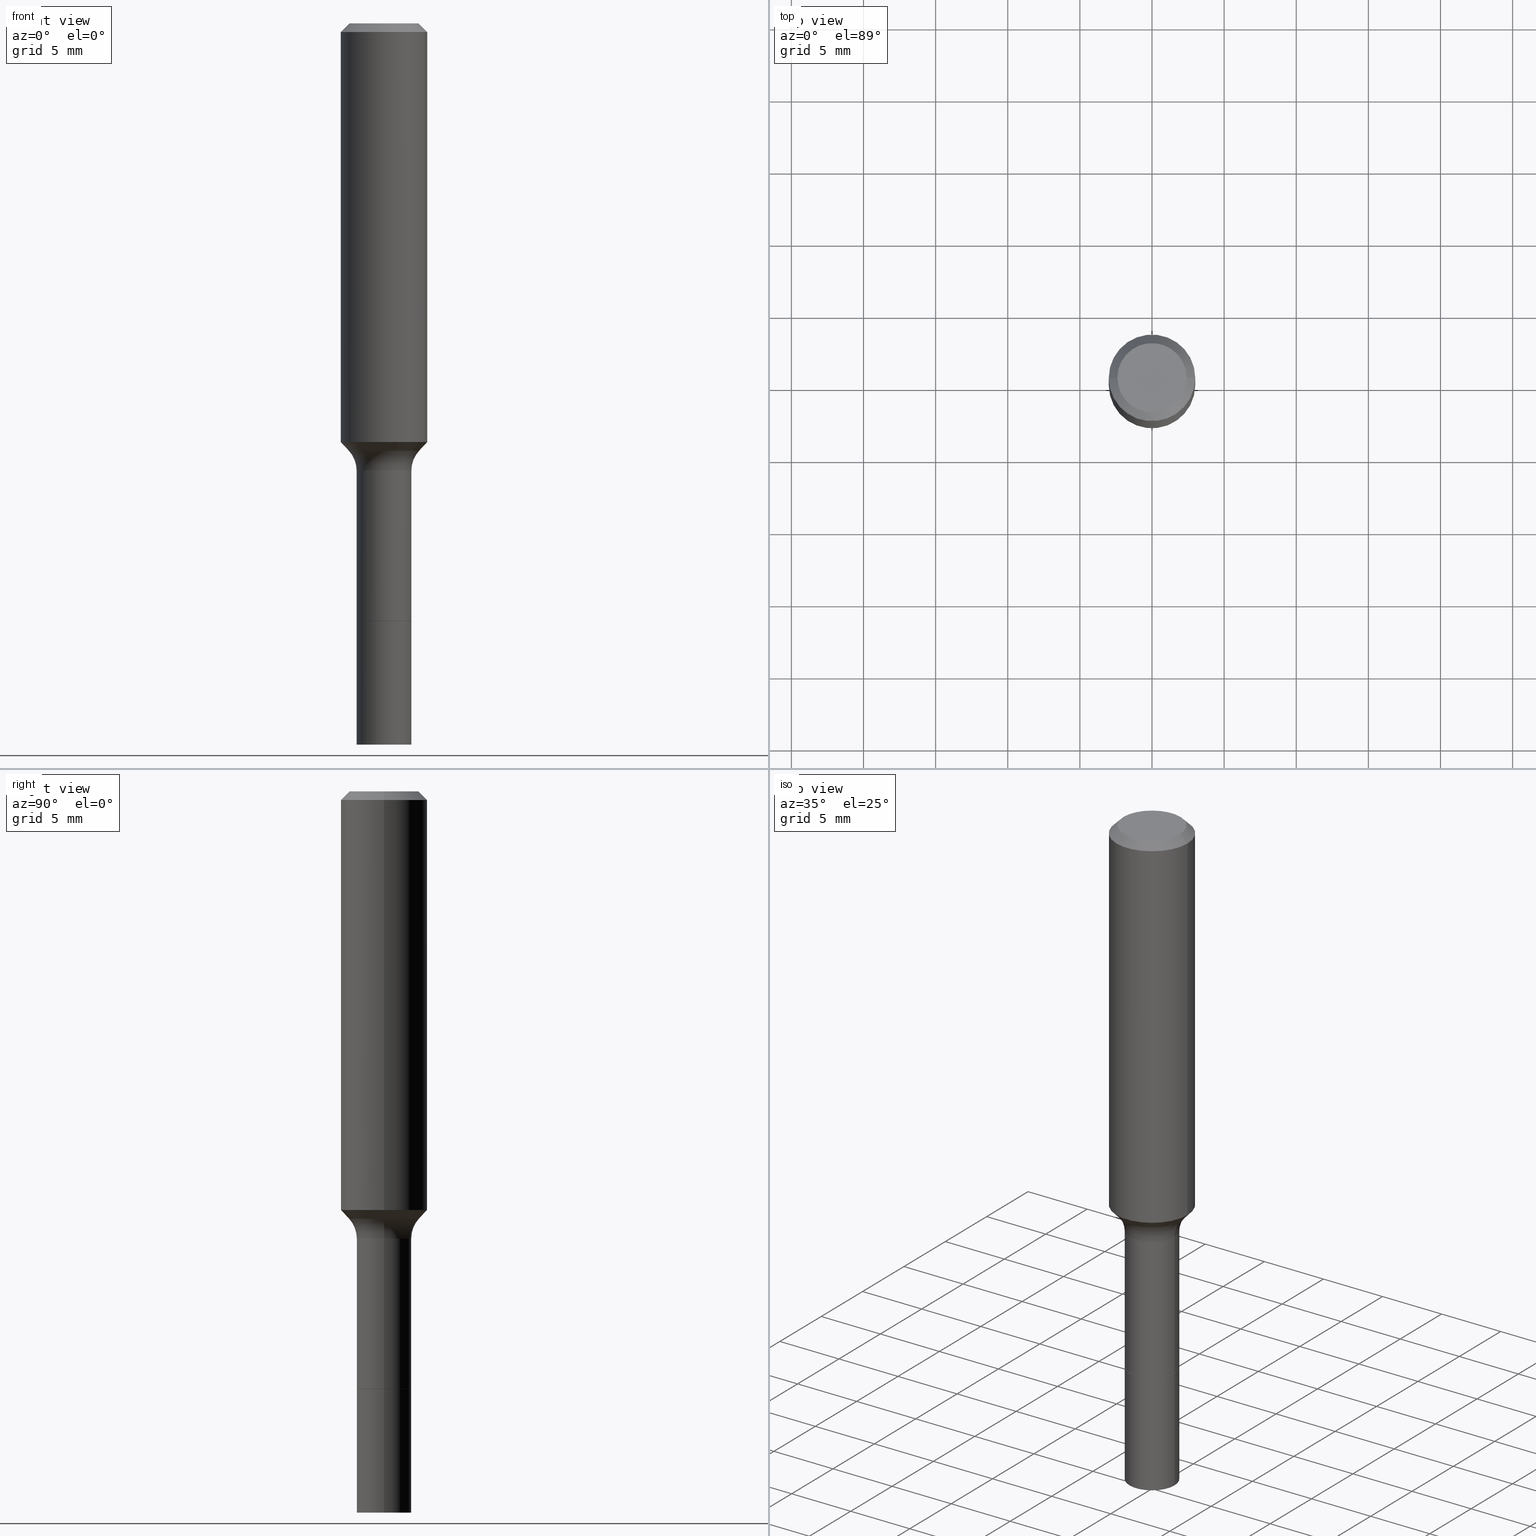
[diagram: canonical four-view strip — front | top / right | iso, engineering-drawing reading convention]
A machine part, canonical four-view strip (front | top / right | iso — engineering-drawing reading convention). The complete STEP part file that produces these views, byte-faithful:
ISO-10303-21;
HEADER;
FILE_DESCRIPTION (( 'STEP AP203' ),
    '1' );
FILE_NAME ('58493.STEP',
    '2025-04-01T15:23:44',
    ( '' ),
    ( '' ),
    'SwSTEP 2.0',
    'SolidWorks 2024',
    '' );
FILE_SCHEMA (( 'CONFIG_CONTROL_DESIGN' ));
ENDSEC;

DATA;
#1 = DIRECTION ( 'NONE',  ( 1.000000000000000000, -6.982962677686264344E-15, 0.000000000000000000 ) ) ;
#2 = ORIENTED_EDGE ( 'NONE', *, *, #299, .F. ) ;
#3 = CIRCLE ( 'NONE', #172, 0.07474999999999999700 ) ;
#4 = AXIS2_PLACEMENT_3D ( 'NONE', #313, #390, #204 ) ;
#5 = ADVANCED_FACE ( 'NONE', ( #259 ), #118, .T. ) ;
#6 = DIRECTION ( 'NONE',  ( -2.445468806185136597E-29, 3.491481338843145583E-15, 1.000000000000000000 ) ) ;
#7 = EDGE_LOOP ( 'NONE', ( #273, #212, #394, #423 ) ) ;
#8 = CARTESIAN_POINT ( 'NONE',  ( -0.07474999999999996925, 5.311306949806746704E-16, -3.676903979965540069E-30 ) ) ;
#9 = SHAPE_DEFINITION_REPRESENTATION ( #242, #48 ) ;
#10 = ORIENTED_EDGE ( 'NONE', *, *, #16, .T. ) ;
#11 = DIRECTION ( 'NONE',  ( 1.000000000000000000, -6.982962677686263555E-15, 0.000000000000000000 ) ) ;
#12 = EDGE_LOOP ( 'NONE', ( #112, #114, #436, #51 ) ) ;
#13 = EDGE_CURVE ( 'NONE', #159, #407, #219, .T. ) ;
#14 = AXIS2_PLACEMENT_3D ( 'NONE', #377, #222, #297 ) ;
#15 = CARTESIAN_POINT ( 'NONE',  ( 0.000000000000000000, 0.000000000000000000, 0.000000000000000000 ) ) ;
#16 = EDGE_CURVE ( 'NONE', #35, #407, #396, .T. ) ;
#17 = DIRECTION ( 'NONE',  ( 1.000000000000000000, -6.982962677686265922E-15, 0.000000000000000000 ) ) ;
#18 = EDGE_CURVE ( 'NONE', #201, #223, #329, .T. ) ;
#19 = DIRECTION ( 'NONE',  ( -2.445468806185136597E-29, 3.491481338843145583E-15, 1.000000000000000000 ) ) ;
#20 = AXIS2_PLACEMENT_3D ( 'NONE', #429, #151, #378 ) ;
#21 = VECTOR ( 'NONE', #441, 39.37007874015748143 ) ;
#22 = CARTESIAN_POINT ( 'NONE',  ( -0.09624170387046646069, -3.387019774652324153E-15, -1.165940131194999951 ) ) ;
#23 = DIRECTION ( 'NONE',  ( -2.445468806185136597E-29, 3.491481338843145583E-15, 1.000000000000000000 ) ) ;
#24 = DIRECTION ( 'NONE',  ( -2.445468806185136597E-29, 3.491481338843145583E-15, 1.000000000000000000 ) ) ;
#25 = DIRECTION ( 'NONE',  ( -2.445468806185136877E-29, 3.491481338843145188E-15, 1.000000000000000000 ) ) ;
#26 = AXIS2_PLACEMENT_3D ( 'NONE', #92, #19, #252 ) ;
#27 = CARTESIAN_POINT ( 'NONE',  ( 2.851270220716778020E-29, -4.070858210275670967E-15, -1.165940131194999951 ) ) ;
#28 = DIRECTION ( 'NONE',  ( -2.445468806185136597E-29, 3.491481338843145583E-15, 1.000000000000000000 ) ) ;
#29 = VERTEX_POINT ( 'NONE', #372 ) ;
#30 = LINE ( 'NONE', #111, #198 ) ;
#31 = DIRECTION ( 'NONE',  ( -1.000000000000000000, 7.105427357600997914E-15, 0.000000000000000000 ) ) ;
#32 = ADVANCED_FACE ( 'NONE', ( #135 ), #457, .F. ) ;
#33 = DIRECTION ( 'NONE',  ( 1.000000000000000000, -6.982962677686271444E-15, 0.000000000000000000 ) ) ;
#34 = DIRECTION ( 'NONE',  ( -2.445468806185136877E-29, 3.491481338843145188E-15, 1.000000000000000000 ) ) ;
#35 = VERTEX_POINT ( 'NONE', #288 ) ;
#36 = DIRECTION ( 'NONE',  ( -2.445468806185136597E-29, 3.491481338843145583E-15, 1.000000000000000000 ) ) ;
#37 = APPROVAL_ROLE ( '' ) ;
#38 = CIRCLE ( 'NONE', #417, 0.09447999999999998066 ) ;
#39 = CARTESIAN_POINT ( 'NONE',  ( 0.07424999999999999656, -6.211345301801953456E-15, -1.630500000000000060 ) ) ;
#40 = VERTEX_POINT ( 'NONE', #453 ) ;
#41 = DIRECTION ( 'NONE',  ( -2.445468806185136597E-29, 3.491481338843145583E-15, 1.000000000000000000 ) ) ;
#42 = ORIENTED_EDGE ( 'NONE', *, *, #490, .F. ) ;
#43 = EDGE_CURVE ( 'NONE', #201, #392, #518, .T. ) ;
#44 = AXIS2_PLACEMENT_3D ( 'NONE', #253, #410, #17 ) ;
#45 = DIRECTION ( 'NONE',  ( 1.000000000000000000, -6.982962677686263555E-15, 0.000000000000000000 ) ) ;
#46 = VERTEX_POINT ( 'NONE', #55 ) ;
#47 = APPROVAL_PERSON_ORGANIZATION ( #193, #413, #37 ) ;
#48 = ADVANCED_BREP_SHAPE_REPRESENTATION ( '58493', ( #367, #189, #14 ), #179 ) ;
#49 = EDGE_LOOP ( 'NONE', ( #65, #324 ) ) ;
#50 = CARTESIAN_POINT ( 'NONE',  ( 2.793948058174047032E-29, -3.989017354111862493E-15, -1.142499978371234404 ) ) ;
#51 = ORIENTED_EDGE ( 'NONE', *, *, #128, .F. ) ;
#52 = DIRECTION ( 'NONE',  ( 2.438088387897960049E-29, -3.491481338843145188E-15, -1.000000000000000000 ) ) ;
#53 = VERTEX_POINT ( 'NONE', #256 ) ;
#54 = ADVANCED_FACE ( 'NONE', ( #459 ), #209, .T. ) ;
#55 = CARTESIAN_POINT ( 'NONE',  ( -0.07474999999999999700, -4.445103083205517975E-15, -1.630000000000000115 ) ) ;
#56 = CC_DESIGN_PERSON_AND_ORGANIZATION_ASSIGNMENT ( #247, #402, ( #254 ) ) ;
#57 = EDGE_LOOP ( 'NONE', ( #139, #251 ) ) ;
#58 = LOCAL_TIME ( 11, 23, 44.00000000000000000, #75 ) ;
#59 = DIRECTION ( 'NONE',  ( 2.445468806185136597E-29, -3.491481338843145583E-15, -1.000000000000000000 ) ) ;
#60 = CARTESIAN_POINT ( 'NONE',  ( 2.984694677948959472E-29, -4.261352974058059028E-15, -1.220499999999999918 ) ) ;
#61 = PERSON_AND_ORGANIZATION_ROLE ( 'design_owner' ) ;
#62 = FACE_OUTER_BOUND ( 'NONE', #7, .T. ) ;
#63 = EDGE_CURVE ( 'NONE', #392, #53, #385, .T. ) ;
#64 = CARTESIAN_POINT ( 'NONE',  ( -0.07474999999999999700, -5.161729628003073983E-15, -1.630500000000000060 ) ) ;
#65 = ORIENTED_EDGE ( 'NONE', *, *, #346, .T. ) ;
#66 = TOROIDAL_SURFACE ( 'NONE', #333, 0.1547499999999999709, 0.08000000000000007105 ) ;
#67 = CYLINDRICAL_SURFACE ( 'NONE', #388, 0.07474999999999999700 ) ;
#68 = COORDINATED_UNIVERSAL_TIME_OFFSET ( 5, 0, .BEHIND. ) ;
#69 = ADVANCED_FACE ( 'NONE', ( #214 ), #138, .F. ) ;
#70 = DIRECTION ( 'NONE',  ( 1.000000000000000000, -6.982962677686271444E-15, 0.000000000000000000 ) ) ;
#71 = APPLICATION_PROTOCOL_DEFINITION ( 'international standard', 'config_control_design', 1994, #218 ) ;
#72 = LINE ( 'NONE', #64, #174 ) ;
#73 = AXIS2_PLACEMENT_3D ( 'NONE', #140, #23, #216 ) ;
#74 = CARTESIAN_POINT ( 'NONE',  ( 0.07474999999999999700, -7.394957475669780996E-15, -1.968500000000000139 ) ) ;
#75 = COORDINATED_UNIVERSAL_TIME_OFFSET ( 5, 0, .BEHIND. ) ;
#76 = VERTEX_POINT ( 'NONE', #497 ) ;
#77 = PRODUCT_DEFINITION_FORMATION_WITH_SPECIFIED_SOURCE ( 'ANY', '', #477, .NOT_KNOWN. ) ;
#78 = FACE_OUTER_BOUND ( 'NONE', #163, .T. ) ;
#79 = EDGE_CURVE ( 'NONE', #223, #407, #335, .T. ) ;
#80 = DATE_AND_TIME ( #276, #266 ) ;
#81 = VERTEX_POINT ( 'NONE', #185 ) ;
#82 = CARTESIAN_POINT ( 'NONE',  ( 0.09624170387046646069, -4.742910436440072201E-15, -1.165940131194999951 ) ) ;
#83 = APPROVAL_STATUS ( 'not_yet_approved' ) ;
#84 = ORIENTED_EDGE ( 'NONE', *, *, #286, .T. ) ;
#85 = FACE_OUTER_BOUND ( 'NONE', #517, .T. ) ;
#86 = SECURITY_CLASSIFICATION_LEVEL ( 'unclassified' ) ;
#87 = ORIENTED_EDGE ( 'NONE', *, *, #316, .T. ) ;
#88 = AXIS2_PLACEMENT_3D ( 'NONE', #235, #515, #89 ) ;
#89 = DIRECTION ( 'NONE',  ( 1.000000000000000000, -6.982962677686271444E-15, 0.000000000000000000 ) ) ;
#90 = ORIENTED_EDGE ( 'NONE', *, *, #490, .T. ) ;
#91 = CARTESIAN_POINT ( 'NONE',  ( 3.986114154081773303E-29, -5.691114582314327248E-15, -1.630000000000000115 ) ) ;
#92 = CARTESIAN_POINT ( 'NONE',  ( 2.851270220716778020E-29, -4.070858210275670967E-15, -1.165940131194999951 ) ) ;
#93 = AXIS2_PLACEMENT_3D ( 'NONE', #300, #269, #509 ) ;
#94 = DIRECTION ( 'NONE',  ( 1.000000000000000000, -6.982962677686266711E-15, 4.876176775795935793E-29 ) ) ;
#95 = LOCAL_TIME ( 11, 23, 44.00000000000000000, #68 ) ;
#96 = ORIENTED_EDGE ( 'NONE', *, *, #391, .T. ) ;
#97 = DIRECTION ( 'NONE',  ( -0.7071067811865461294, 2.468850131082242072E-15, -0.7071067811865489050 ) ) ;
#98 = ORIENTED_EDGE ( 'NONE', *, *, #421, .F. ) ;
#99 = AXIS2_PLACEMENT_3D ( 'NONE', #177, #59, #458 ) ;
#100 = CIRCLE ( 'NONE', #400, 0.1181000000000001493 ) ;
#101 = CARTESIAN_POINT ( 'NONE',  ( -0.07424999999999999656, -5.162633114507762892E-15, -1.630500000000000060 ) ) ;
#102 = DIRECTION ( 'NONE',  ( -2.445468806185136597E-29, 3.491481338843145583E-15, 1.000000000000000000 ) ) ;
#103 = FACE_OUTER_BOUND ( 'NONE', #12, .T. ) ;
#104 = CALENDAR_DATE ( 2025, 1, 4 ) ;
#105 = DIRECTION ( 'NONE',  ( 0.7071067811866199593, -2.468850131083015945E-15, 0.7071067811864750752 ) ) ;
#106 = APPROVAL_DATE_TIME ( #147, #203 ) ;
#107 = CIRCLE ( 'NONE', #20, 0.09447999999999998066 ) ;
#108 = CARTESIAN_POINT ( 'NONE',  ( 0.07424999999999999656, -6.211345301801953456E-15, -1.630500000000000060 ) ) ;
#109 = CONICAL_SURFACE ( 'NONE', #409, 0.1180999999999999966, 0.7853981633974463916 ) ;
#110 = ORIENTED_EDGE ( 'NONE', *, *, #411, .F. ) ;
#111 = CARTESIAN_POINT ( 'NONE',  ( 0.1181000000000000660, -8.246878922347485584E-16, 5.758764772215003944E-30 ) ) ;
#112 = ORIENTED_EDGE ( 'NONE', *, *, #145, .T. ) ;
#113 = LINE ( 'NONE', #82, #501 ) ;
#114 = ORIENTED_EDGE ( 'NONE', *, *, #496, .T. ) ;
#115 = VECTOR ( 'NONE', #25, 39.37007874015748143 ) ;
#116 = ADVANCED_FACE ( 'NONE', ( #347 ), #267, .T. ) ;
#117 = DIRECTION ( 'NONE',  ( 1.000000000000000000, -6.982962677686271444E-15, 0.000000000000000000 ) ) ;
#118 = CONICAL_SURFACE ( 'NONE', #99, 0.1180999999999999966, 0.7853981633974463916 ) ;
#119 = COORDINATED_UNIVERSAL_TIME_OFFSET ( 5, 0, .BEHIND. ) ;
#120 = ORIENTED_EDGE ( 'NONE', *, *, #316, .F. ) ;
#121 = AXIS2_PLACEMENT_3D ( 'NONE', #165, #357, #1 ) ;
#122 = LINE ( 'NONE', #8, #21 ) ;
#123 = PRODUCT_RELATED_PRODUCT_CATEGORY ( 'detail', '', ( #477 ) ) ;
#124 = EDGE_LOOP ( 'NONE', ( #445, #173, #84, #315 ) ) ;
#125 = FACE_OUTER_BOUND ( 'NONE', #124, .T. ) ;
#126 = PERSON_AND_ORGANIZATION ( #258, #308 ) ;
#127 = ORIENTED_EDGE ( 'NONE', *, *, #215, .F. ) ;
#128 = EDGE_CURVE ( 'NONE', #361, #29, #419, .T. ) ;
#129 = AXIS2_PLACEMENT_3D ( 'NONE', #309, #468, #498 ) ;
#130 = DIRECTION ( 'NONE',  ( 1.000000000000000000, -6.982962677686265922E-15, 0.000000000000000000 ) ) ;
#131 = CALENDAR_DATE ( 2025, 1, 4 ) ;
#132 = ORIENTED_EDGE ( 'NONE', *, *, #43, .F. ) ;
#133 = AXIS2_PLACEMENT_3D ( 'NONE', #393, #475, #117 ) ;
#134 = PLANE ( 'NONE',  #150 ) ;
#135 = FACE_OUTER_BOUND ( 'NONE', #57, .T. ) ;
#136 = VERTEX_POINT ( 'NONE', #101 ) ;
#137 = ADVANCED_FACE ( 'NONE', ( #62 ), #430, .T. ) ;
#138 = PLANE ( 'NONE',  #314 ) ;
#139 = ORIENTED_EDGE ( 'NONE', *, *, #331, .T. ) ;
#140 = CARTESIAN_POINT ( 'NONE',  ( 5.776197320209327532E-31, -8.246878922347559293E-17, -0.02362000000000014088 ) ) ;
#141 = ADVANCED_FACE ( 'NONE', ( #146 ), #339, .T. ) ;
#142 = LINE ( 'NONE', #108, #225 ) ;
#143 = APPROVAL_PERSON_ORGANIZATION ( #126, #447, #284 ) ;
#144 = DIRECTION ( 'NONE',  ( 1.000000000000000000, -6.982962677686271444E-15, 0.000000000000000000 ) ) ;
#145 = EDGE_CURVE ( 'NONE', #361, #76, #500, .T. ) ;
#146 = FACE_OUTER_BOUND ( 'NONE', #412, .T. ) ;
#147 = DATE_AND_TIME ( #104, #298 ) ;
#148 = CARTESIAN_POINT ( 'NONE',  ( 4.813905344975441835E-29, -6.872981015512731707E-15, -1.968500000000000139 ) ) ;
#149 = LENGTH_MEASURE_WITH_UNIT ( LENGTH_MEASURE( 0.02539999999999999897 ), #499 );
#150 = AXIS2_PLACEMENT_3D ( 'NONE', #287, #452, #405 ) ;
#151 = DIRECTION ( 'NONE',  ( -2.445468806185136597E-29, 3.491481338843145583E-15, 1.000000000000000000 ) ) ;
#152 = CLOSED_SHELL ( 'NONE', ( #232, #467, #137, #32 ) ) ;
#153 = AXIS2_PLACEMENT_3D ( 'NONE', #282, #444, #130 ) ;
#154 = PERSON_AND_ORGANIZATION ( #258, #308 ) ;
#155 = DIRECTION ( 'NONE',  ( 1.000000000000000000, -6.982962677686266711E-15, 0.000000000000000000 ) ) ;
#156 = DATE_AND_TIME ( #480, #95 ) ;
#157 = ADVANCED_FACE ( 'NONE', ( #386 ), #66, .F. ) ;
#158 = DIRECTION ( 'NONE',  ( 2.445468806185136597E-29, -3.491481338843145583E-15, -1.000000000000000000 ) ) ;
#159 = VERTEX_POINT ( 'NONE', #466 ) ;
#160 = AXIS2_PLACEMENT_3D ( 'NONE', #148, #220, #183 ) ;
#161 = LINE ( 'NONE', #317, #283 ) ;
#162 = PERSON_AND_ORGANIZATION_ROLE ( 'creator' ) ;
#163 = EDGE_LOOP ( 'NONE', ( #403, #373, #10, #406 ) ) ;
#164 = AXIS2_PLACEMENT_3D ( 'NONE', #192, #6, #45 ) ;
#165 = CARTESIAN_POINT ( 'NONE',  ( 3.987336888484864983E-29, -5.692860322983748752E-15, -1.630500000000000060 ) ) ;
#166 = DATE_TIME_ROLE ( 'classification_date' ) ;
#167 = EDGE_LOOP ( 'NONE', ( #295, #197, #476, #260 ) ) ;
#168 = CARTESIAN_POINT ( 'NONE',  ( 0.09447999999999998066, -7.704367267948738690E-16, -3.085620075131172158E-17 ) ) ;
#169 = APPROVAL_DATE_TIME ( #439, #413 ) ;
#170 = EDGE_LOOP ( 'NONE', ( #414, #345, #364, #2 ) ) ;
#171 = DIRECTION ( 'NONE',  ( 1.000000000000000000, -6.982962677686271444E-15, 0.000000000000000000 ) ) ;
#172 = AXIS2_PLACEMENT_3D ( 'NONE', #230, #383, #33 ) ;
#173 = ORIENTED_EDGE ( 'NONE', *, *, #43, .T. ) ;
#174 = VECTOR ( 'NONE', #34, 39.37007874015748143 ) ;
#175 = ORIENTED_EDGE ( 'NONE', *, *, #63, .T. ) ;
#176 = EDGE_CURVE ( 'NONE', #285, #159, #107, .T. ) ;
#177 = CARTESIAN_POINT ( 'NONE',  ( 5.776197320209327532E-31, -8.246878922347559293E-17, -0.02362000000000014088 ) ) ;
#178 = DIRECTION ( 'NONE',  ( 1.000000000000000000, -6.982962677686265922E-15, 4.876176775795935793E-29 ) ) ;
#179 =( GEOMETRIC_REPRESENTATION_CONTEXT ( 3 ) GLOBAL_UNCERTAINTY_ASSIGNED_CONTEXT ( ( #279 ) ) GLOBAL_UNIT_ASSIGNED_CONTEXT ( ( #422, #182, #270 ) ) REPRESENTATION_CONTEXT ( 'NONE', 'WORKASPACE' ) );
#180 = CARTESIAN_POINT ( 'NONE',  ( 3.987336888484864983E-29, -5.692860322983748752E-15, -1.630500000000000060 ) ) ;
#181 = CARTESIAN_POINT ( 'NONE',  ( -0.1181000000000000660, 8.391509709326787887E-16, -5.809262341591047287E-30 ) ) ;
#182 =( NAMED_UNIT ( * ) PLANE_ANGLE_UNIT ( ) SI_UNIT ( $, .RADIAN. ) );
#183 = DIRECTION ( 'NONE',  ( 1.000000000000000000, -6.982962677686271444E-15, 0.000000000000000000 ) ) ;
#184 = PLANE ( 'NONE',  #202 ) ;
#185 = CARTESIAN_POINT ( 'NONE',  ( -0.07474999999999999700, -5.751789974267565855E-15, -1.630500000000000060 ) ) ;
#186 = DIRECTION ( 'NONE',  ( -2.445468806185136877E-29, 3.491481338843145188E-15, 1.000000000000000000 ) ) ;
#187 = CARTESIAN_POINT ( 'NONE',  ( 0.1181000000000001493, -4.813705246346611545E-15, -1.142499978371234404 ) ) ;
#188 = EDGE_LOOP ( 'NONE', ( #322, #505 ) ) ;
#189 = MANIFOLD_SOLID_BREP ( 'Body-Move/Copy2[2]', #448 ) ;
#190 = AXIS2_PLACEMENT_3D ( 'NONE', #91, #365, #171 ) ;
#191 = DIRECTION ( 'NONE',  ( -1.000000000000000000, 6.982962677686266711E-15, 0.000000000000000000 ) ) ;
#192 = CARTESIAN_POINT ( 'NONE',  ( 2.984694677948959472E-29, -4.261352974058059028E-15, -1.220499999999999918 ) ) ;
#193 = PERSON_AND_ORGANIZATION ( #258, #308 ) ;
#194 = ORIENTED_EDGE ( 'NONE', *, *, #380, .T. ) ;
#195 = CC_DESIGN_DATE_AND_TIME_ASSIGNMENT ( #387, #166, ( #254 ) ) ;
#196 = DIRECTION ( 'NONE',  ( 0.6819983600625002529, -2.208861293262493158E-15, 0.7313537016191689055 ) ) ;
#197 = ORIENTED_EDGE ( 'NONE', *, *, #346, .F. ) ;
#198 = VECTOR ( 'NONE', #186, 39.37007874015748143 ) ;
#199 = CARTESIAN_POINT ( 'NONE',  ( 7.545787641473140628E-46, -1.077338491108201769E-31, -3.085620075131671975E-17 ) ) ;
#200 = APPROVAL_DATE_TIME ( #80, #447 ) ;
#201 = VERTEX_POINT ( 'NONE', #305 ) ;
#202 = AXIS2_PLACEMENT_3D ( 'NONE', #228, #431, #264 ) ;
#203 = APPROVAL ( #340, 'UNSPECIFIED' ) ;
#204 = DIRECTION ( 'NONE',  ( 1.000000000000000000, -6.982962677686266711E-15, 4.876176775795936353E-29 ) ) ;
#205 = ORIENTED_EDGE ( 'NONE', *, *, #325, .T. ) ;
#206 = DIRECTION ( 'NONE',  ( -2.445468806185136597E-29, 3.491481338843145583E-15, 1.000000000000000000 ) ) ;
#207 = ORIENTED_EDGE ( 'NONE', *, *, #210, .T. ) ;
#208 = AXIS2_PLACEMENT_3D ( 'NONE', #15, #455, #94 ) ;
#209 = CYLINDRICAL_SURFACE ( 'NONE', #208, 0.07474999999999996925 ) ;
#210 = EDGE_CURVE ( 'NONE', #392, #201, #304, .T. ) ;
#211 = CC_DESIGN_APPROVAL ( #413, ( #254 ) ) ;
#212 = ORIENTED_EDGE ( 'NONE', *, *, #506, .T. ) ;
#213 = EDGE_CURVE ( 'NONE', #281, #223, #351, .T. ) ;
#214 = FACE_OUTER_BOUND ( 'NONE', #188, .T. ) ;
#215 = EDGE_CURVE ( 'NONE', #332, #40, #142, .T. ) ;
#216 = DIRECTION ( 'NONE',  ( 1.000000000000000000, -6.982962677686266711E-15, 0.000000000000000000 ) ) ;
#217 = CC_DESIGN_APPROVAL ( #447, ( #77 ) ) ;
#218 = APPLICATION_CONTEXT ( 'configuration controlled 3d designs of mechanical parts and assemblies' ) ;
#219 = LINE ( 'NONE', #495, #485 ) ;
#220 = DIRECTION ( 'NONE',  ( -2.445468806185136597E-29, 3.491481338843145583E-15, 1.000000000000000000 ) ) ;
#221 = CARTESIAN_POINT ( 'NONE',  ( 3.987336888484864983E-29, -5.692860322983748752E-15, -1.630500000000000060 ) ) ;
#222 = DIRECTION ( 'NONE',  ( 0.000000000000000000, 0.000000000000000000, 1.000000000000000000 ) ) ;
#223 = VERTEX_POINT ( 'NONE', #296 ) ;
#224 = EDGE_CURVE ( 'NONE', #136, #332, #326, .T. ) ;
#225 = VECTOR ( 'NONE', #105, 39.37007874015748143 ) ;
#226 = CIRCLE ( 'NONE', #88, 0.07474999999999999700 ) ;
#227 = CARTESIAN_POINT ( 'NONE',  ( 3.987336888484864983E-29, -5.692860322983748752E-15, -1.630500000000000060 ) ) ;
#228 = CARTESIAN_POINT ( 'NONE',  ( 4.813905344975441835E-29, -6.872981015512731707E-15, -1.968500000000000139 ) ) ;
#229 = AXIS2_PLACEMENT_3D ( 'NONE', #362, #360, #280 ) ;
#230 = CARTESIAN_POINT ( 'NONE',  ( 3.987336888484864983E-29, -5.692860322983748752E-15, -1.630500000000000060 ) ) ;
#231 = CARTESIAN_POINT ( 'NONE',  ( 0.1180999999999999966, -8.926936027602933910E-16, -0.02362000000000014088 ) ) ;
#232 = ADVANCED_FACE ( 'NONE', ( #103 ), #67, .T. ) ;
#233 = DIRECTION ( 'NONE',  ( -2.445468806185136597E-29, 3.491481338843145583E-15, 1.000000000000000000 ) ) ;
#234 = APPROVAL_PERSON_ORGANIZATION ( #507, #203, #504 ) ;
#235 = CARTESIAN_POINT ( 'NONE',  ( 3.987336888484864983E-29, -5.692860322983748752E-15, -1.630500000000000060 ) ) ;
#236 = ORIENTED_EDGE ( 'NONE', *, *, #16, .F. ) ;
#237 = AXIS2_PLACEMENT_3D ( 'NONE', #323, #250, #155 ) ;
#238 = DIRECTION ( 'NONE',  ( -2.445468806185136597E-29, 3.491481338843145583E-15, 1.000000000000000000 ) ) ;
#239 = DATE_TIME_ROLE ( 'creation_date' ) ;
#240 = EDGE_LOOP ( 'NONE', ( #481, #359, #236, #244 ) ) ;
#241 = EDGE_CURVE ( 'NONE', #281, #35, #30, .T. ) ;
#242 = PRODUCT_DEFINITION_SHAPE ( 'NONE', 'NONE',  #294 ) ;
#243 = DIRECTION ( 'NONE',  ( -0.7071067811866199593, 7.493145998870616062E-15, 0.7071067811864750752 ) ) ;
#244 = ORIENTED_EDGE ( 'NONE', *, *, #241, .F. ) ;
#245 = CC_DESIGN_PERSON_AND_ORGANIZATION_ASSIGNMENT ( #397, #435, ( #77 ) ) ;
#246 = CARTESIAN_POINT ( 'NONE',  ( -0.1180999999999999966, -1.196592100734989792E-15, -0.02362000000000014088 ) ) ;
#247 = PERSON_AND_ORGANIZATION ( #258, #308 ) ;
#248 = ORIENTED_EDGE ( 'NONE', *, *, #18, .T. ) ;
#249 = CIRCLE ( 'NONE', #469, 0.07424999999999999656 ) ;
#250 = DIRECTION ( 'NONE',  ( -2.445468806185136597E-29, 3.491481338843145583E-15, 1.000000000000000000 ) ) ;
#251 = ORIENTED_EDGE ( 'NONE', *, *, #257, .T. ) ;
#252 = DIRECTION ( 'NONE',  ( 1.000000000000000000, -6.982962677686265922E-15, 0.000000000000000000 ) ) ;
#253 = CARTESIAN_POINT ( 'NONE',  ( 0.1547499999999999709, -5.341966448430008391E-15, -1.220499999999999918 ) ) ;
#254 = SECURITY_CLASSIFICATION ( '', '', #86 ) ;
#255 = CIRCLE ( 'NONE', #237, 0.1180999999999999966 ) ;
#256 = CARTESIAN_POINT ( 'NONE',  ( 0.07474999999999994149, -4.783329434215106738E-15, -1.220499999999999918 ) ) ;
#257 = EDGE_CURVE ( 'NONE', #81, #29, #3, .T. ) ;
#258 = PERSON ( 'UNSPECIFIED', 'UNSPECIFIED', 'UNSPECIFIED', ('UNSPECIFIED'), ('UNSPECIFIED'), ('UNSPECIFIED') ) ;
#259 = FACE_OUTER_BOUND ( 'NONE', #167, .T. ) ;
#260 = ORIENTED_EDGE ( 'NONE', *, *, #299, .T. ) ;
#261 = AXIS2_PLACEMENT_3D ( 'NONE', #271, #41, #401 ) ;
#262 = CARTESIAN_POINT ( 'NONE',  ( -0.1547499999999999709, -3.161788090469304394E-15, -1.220499999999999918 ) ) ;
#263 = DIRECTION ( 'NONE',  ( 1.000000000000000000, -6.982962677686264344E-15, 0.000000000000000000 ) ) ;
#264 = DIRECTION ( 'NONE',  ( -1.000000000000000000, 6.982962677686265922E-15, -4.876176775795935793E-29 ) ) ;
#265 = PERSON_AND_ORGANIZATION ( #258, #308 ) ;
#266 = LOCAL_TIME ( 11, 23, 44.00000000000000000, #119 ) ;
#267 = CYLINDRICAL_SURFACE ( 'NONE', #93, 0.1181000000000000660 ) ;
#268 = DIRECTION ( 'NONE',  ( 0.7071067811865461294, -7.319954787623251312E-15, -0.7071067811865489050 ) ) ;
#269 = DIRECTION ( 'NONE',  ( -2.445468806185136597E-29, 3.491481338843145583E-15, 1.000000000000000000 ) ) ;
#270 =( NAMED_UNIT ( * ) SI_UNIT ( $, .STERADIAN. ) SOLID_ANGLE_UNIT ( ) );
#271 = CARTESIAN_POINT ( 'NONE',  ( 2.984694677948959472E-29, -4.261352974058059028E-15, -1.220499999999999918 ) ) ;
#272 = AXIS2_PLACEMENT_3D ( 'NONE', #180, #52, #492 ) ;
#273 = ORIENTED_EDGE ( 'NONE', *, *, #496, .F. ) ;
#274 = CC_DESIGN_SECURITY_CLASSIFICATION ( #254, ( #77 ) ) ;
#275 = CARTESIAN_POINT ( 'NONE',  ( 0.09624170387046646069, -4.742910436440072201E-15, -1.165940131194999951 ) ) ;
#276 = CALENDAR_DATE ( 2025, 1, 4 ) ;
#277 = ORIENTED_EDGE ( 'NONE', *, *, #215, .T. ) ;
#278 = ORIENTED_EDGE ( 'NONE', *, *, #380, .F. ) ;
#279 = UNCERTAINTY_MEASURE_WITH_UNIT (LENGTH_MEASURE( 1.000000000000000082E-05 ), #422, 'distance_accuracy_value', 'NONE');
#280 = DIRECTION ( 'NONE',  ( 1.000000000000000000, -6.982962677686265922E-15, 0.000000000000000000 ) ) ;
#281 = VERTEX_POINT ( 'NONE', #187 ) ;
#282 = CARTESIAN_POINT ( 'NONE',  ( 2.851270220716778020E-29, -4.070858210275670967E-15, -1.165940131194999951 ) ) ;
#283 = VECTOR ( 'NONE', #478, 39.37007874015748143 ) ;
#284 = APPROVAL_ROLE ( '' ) ;
#285 = VERTEX_POINT ( 'NONE', #168 ) ;
#286 = EDGE_CURVE ( 'NONE', #392, #281, #113, .T. ) ;
#287 = CARTESIAN_POINT ( 'NONE',  ( 3.772893820736570314E-46, -5.386692455541008845E-32, -1.542810037565835988E-17 ) ) ;
#288 = CARTESIAN_POINT ( 'NONE',  ( 0.1180999999999999966, -9.071566814582237199E-16, -0.02362000000000014088 ) ) ;
#289 = ORIENTED_EDGE ( 'NONE', *, *, #145, .F. ) ;
#290 = VERTEX_POINT ( 'NONE', #482 ) ;
#291 = ADVANCED_FACE ( 'NONE', ( #125 ), #446, .T. ) ;
#292 = CIRCLE ( 'NONE', #133, 0.07474999999999999700 ) ;
#293 = EDGE_LOOP ( 'NONE', ( #289, #398 ) ) ;
#294 = PRODUCT_DEFINITION ( 'UNKNOWN', '', #77, #465 ) ;
#295 = ORIENTED_EDGE ( 'NONE', *, *, #454, .F. ) ;
#296 = CARTESIAN_POINT ( 'NONE',  ( -0.1181000000000001493, -3.149866383179183113E-15, -1.142499978371234404 ) ) ;
#297 = DIRECTION ( 'NONE',  ( 1.000000000000000000, 0.000000000000000000, 0.000000000000000000 ) ) ;
#298 = LOCAL_TIME ( 11, 23, 44.00000000000000000, #301 ) ;
#299 = EDGE_CURVE ( 'NONE', #407, #35, #255, .T. ) ;
#300 = CARTESIAN_POINT ( 'NONE',  ( 0.000000000000000000, 0.000000000000000000, 0.000000000000000000 ) ) ;
#301 = COORDINATED_UNIVERSAL_TIME_OFFSET ( 5, 0, .BEHIND. ) ;
#302 = DIRECTION ( 'NONE',  ( 1.000000000000000000, -6.982962677686265922E-15, 0.000000000000000000 ) ) ;
#303 = CARTESIAN_POINT ( 'NONE',  ( 4.813905344975441835E-29, -6.872981015512731707E-15, -1.968500000000000139 ) ) ;
#304 = CIRCLE ( 'NONE', #510, 0.09624170387046646069 ) ;
#305 = CARTESIAN_POINT ( 'NONE',  ( -0.09624170387046646069, -3.387019774652324153E-15, -1.165940131194999951 ) ) ;
#306 = ADVANCED_FACE ( 'NONE', ( #355 ), #341, .T. ) ;
#307 = DIRECTION ( 'NONE',  ( 1.000000000000000000, -6.982962677686266711E-15, 4.876176775795935793E-29 ) ) ;
#308 = ORGANIZATION ( 'UNSPECIFIED', 'UNSPECIFIED', '' ) ;
#309 = CARTESIAN_POINT ( 'NONE',  ( 2.793948058174047032E-29, -3.989017354111862493E-15, -1.142499978371234404 ) ) ;
#310 = FACE_OUTER_BOUND ( 'NONE', #293, .T. ) ;
#311 = EDGE_LOOP ( 'NONE', ( #42, #416, #175, #194 ) ) ;
#312 = LINE ( 'NONE', #354, #353 ) ;
#313 = CARTESIAN_POINT ( 'NONE',  ( 0.000000000000000000, 0.000000000000000000, 0.000000000000000000 ) ) ;
#314 = AXIS2_PLACEMENT_3D ( 'NONE', #337, #371, #178 ) ;
#315 = ORIENTED_EDGE ( 'NONE', *, *, #443, .F. ) ;
#316 = EDGE_CURVE ( 'NONE', #136, #46, #312, .T. ) ;
#317 = CARTESIAN_POINT ( 'NONE',  ( 0.07474999999999996925, -5.219764601570482039E-16, 3.644942139907460492E-30 ) ) ;
#318 = APPROVAL_STATUS ( 'not_yet_approved' ) ;
#319 = ORIENTED_EDGE ( 'NONE', *, *, #213, .F. ) ;
#320 = DIRECTION ( 'NONE',  ( 1.000000000000000000, -6.982962677686267499E-15, 4.875432709231658792E-29 ) ) ;
#321 = ADVANCED_FACE ( 'NONE', ( #450 ), #456, .F. ) ;
#322 = ORIENTED_EDGE ( 'NONE', *, *, #325, .F. ) ;
#323 = CARTESIAN_POINT ( 'NONE',  ( 5.776197320209327532E-31, -8.246878922347559293E-17, -0.02362000000000014088 ) ) ;
#324 = ORIENTED_EDGE ( 'NONE', *, *, #176, .T. ) ;
#325 = EDGE_CURVE ( 'NONE', #332, #136, #249, .T. ) ;
#326 = CIRCLE ( 'NONE', #425, 0.07424999999999999656 ) ;
#327 = CARTESIAN_POINT ( 'NONE',  ( 2.984694677948959472E-29, -4.261352974058059028E-15, -1.220499999999999918 ) ) ;
#328 = CIRCLE ( 'NONE', #190, 0.07474999999999999700 ) ;
#329 = LINE ( 'NONE', #22, #493 ) ;
#330 = ORIENTED_EDGE ( 'NONE', *, *, #286, .F. ) ;
#331 = EDGE_CURVE ( 'NONE', #29, #81, #226, .T. ) ;
#332 = VERTEX_POINT ( 'NONE', #39 ) ;
#333 = AXIS2_PLACEMENT_3D ( 'NONE', #60, #502, #420 ) ;
#334 = ADVANCED_FACE ( 'NONE', ( #78 ), #109, .T. ) ;
#335 = LINE ( 'NONE', #181, #115 ) ;
#336 = CONICAL_SURFACE ( 'NONE', #121, 0.07424999999999999656, 0.7853981633975507526 ) ;
#337 = CARTESIAN_POINT ( 'NONE',  ( 3.987336888484864983E-29, -5.692860322983748752E-15, -1.630500000000000060 ) ) ;
#338 = DIRECTION ( 'NONE',  ( 1.000000000000000000, -6.982962677686271444E-15, 0.000000000000000000 ) ) ;
#339 = CONICAL_SURFACE ( 'NONE', #408, 0.07424999999999999656, 0.7853981633975507526 ) ;
#340 = APPROVAL_STATUS ( 'not_yet_approved' ) ;
#341 = CONICAL_SURFACE ( 'NONE', #153, 0.09624170387046646069, 0.7504915783575640820 ) ;
#342 = CIRCLE ( 'NONE', #164, 0.07474999999999994149 ) ;
#343 = DIRECTION ( 'NONE',  ( -2.445468806185136877E-29, 3.491481338843145188E-15, 1.000000000000000000 ) ) ;
#344 = LINE ( 'NONE', #231, #389 ) ;
#345 = ORIENTED_EDGE ( 'NONE', *, *, #443, .T. ) ;
#346 = EDGE_CURVE ( 'NONE', #159, #285, #38, .T. ) ;
#347 = FACE_OUTER_BOUND ( 'NONE', #170, .T. ) ;
#348 = DIRECTION ( 'NONE',  ( 7.105427357601001859E-15, 1.000000000000000000, -3.491481338843145583E-15 ) ) ;
#349 = DIRECTION ( 'NONE',  ( -2.445468806185136597E-29, 3.491481338843145583E-15, 1.000000000000000000 ) ) ;
#350 = CC_DESIGN_PERSON_AND_ORGANIZATION_ASSIGNMENT ( #265, #426, ( #294 ) ) ;
#351 = CIRCLE ( 'NONE', #129, 0.1181000000000001493 ) ;
#352 = ORIENTED_EDGE ( 'NONE', *, *, #411, .T. ) ;
#353 = VECTOR ( 'NONE', #243, 39.37007874015748143 ) ;
#354 = CARTESIAN_POINT ( 'NONE',  ( -0.07424999999999999656, -5.165282341681874093E-15, -1.630500000000000060 ) ) ;
#355 = FACE_OUTER_BOUND ( 'NONE', #489, .T. ) ;
#356 = ORIENTED_EDGE ( 'NONE', *, *, #391, .F. ) ;
#357 = DIRECTION ( 'NONE',  ( -2.445468806185136597E-29, 3.491481338843145583E-15, 1.000000000000000000 ) ) ;
#358 = CALENDAR_DATE ( 2025, 1, 4 ) ;
#359 = ORIENTED_EDGE ( 'NONE', *, *, #79, .T. ) ;
#360 = DIRECTION ( 'NONE',  ( -2.445468806185136597E-29, 3.491481338843145583E-15, 1.000000000000000000 ) ) ;
#361 = VERTEX_POINT ( 'NONE', #74 ) ;
#362 = CARTESIAN_POINT ( 'NONE',  ( 2.851270220716778020E-29, -4.070858210275670967E-15, -1.165940131194999951 ) ) ;
#363 = PERSON_AND_ORGANIZATION ( #258, #308 ) ;
#364 = ORIENTED_EDGE ( 'NONE', *, *, #241, .T. ) ;
#365 = DIRECTION ( 'NONE',  ( -2.445468806185136597E-29, 3.491481338843145583E-15, 1.000000000000000000 ) ) ;
#366 = EDGE_LOOP ( 'NONE', ( #96, #352, #278, #491 ) ) ;
#367 = MANIFOLD_SOLID_BREP ( 'Body-Move/Copy2[1]', #152 ) ;
#368 = DIRECTION ( 'NONE',  ( -0.6819983600625002529, 7.399397606724294465E-15, 0.7313537016191689055 ) ) ;
#369 = DIMENSIONAL_EXPONENTS ( 1.000000000000000000, 0.000000000000000000, 0.000000000000000000, 0.000000000000000000, 0.000000000000000000, 0.000000000000000000, 0.000000000000000000 ) ;
#370 = ORIENTED_EDGE ( 'NONE', *, *, #415, .T. ) ;
#371 = DIRECTION ( 'NONE',  ( -2.438088387897960049E-29, 3.491481338843145188E-15, 1.000000000000000000 ) ) ;
#372 = CARTESIAN_POINT ( 'NONE',  ( 0.07474999999999999700, -6.214836783140797252E-15, -1.630500000000000060 ) ) ;
#373 = ORIENTED_EDGE ( 'NONE', *, *, #454, .T. ) ;
#374 = ADVANCED_FACE ( 'NONE', ( #513 ), #434, .T. ) ;
#375 = CYLINDRICAL_SURFACE ( 'NONE', #428, 0.07474999999999996925 ) ;
#376 = CARTESIAN_POINT ( 'NONE',  ( 3.987336888484864983E-29, -5.692860322983748752E-15, -1.630500000000000060 ) ) ;
#377 = CARTESIAN_POINT ( 'NONE',  ( 0.000000000000000000, 0.000000000000000000, 0.000000000000000000 ) ) ;
#378 = DIRECTION ( 'NONE',  ( 1.000000000000000000, -6.982962677686267499E-15, 4.875432709231658792E-29 ) ) ;
#379 = CIRCLE ( 'NONE', #494, 0.08000000000000007105 ) ;
#380 = EDGE_CURVE ( 'NONE', #53, #290, #342, .T. ) ;
#381 = DIRECTION ( 'NONE',  ( -2.445468806185136597E-29, 3.491481338843145583E-15, 1.000000000000000000 ) ) ;
#382 = CARTESIAN_POINT ( 'NONE',  ( 0.000000000000000000, 0.000000000000000000, 0.000000000000000000 ) ) ;
#383 = DIRECTION ( 'NONE',  ( -2.445468806185136597E-29, 3.491481338843145583E-15, 1.000000000000000000 ) ) ;
#384 = DIRECTION ( 'NONE',  ( 1.000000000000000000, -6.982962677686264344E-15, 0.000000000000000000 ) ) ;
#385 = CIRCLE ( 'NONE', #44, 0.08000000000000007105 ) ;
#386 = FACE_OUTER_BOUND ( 'NONE', #472, .T. ) ;
#387 = DATE_AND_TIME ( #358, #58 ) ;
#388 = AXIS2_PLACEMENT_3D ( 'NONE', #227, #381, #70 ) ;
#389 = VECTOR ( 'NONE', #268, 39.37007874015748143 ) ;
#390 = DIRECTION ( 'NONE',  ( -2.445468806185136597E-29, 3.491481338843145583E-15, 1.000000000000000000 ) ) ;
#391 = EDGE_CURVE ( 'NONE', #40, #46, #292, .T. ) ;
#392 = VERTEX_POINT ( 'NONE', #275 ) ;
#393 = CARTESIAN_POINT ( 'NONE',  ( 3.986114154081773303E-29, -5.691114582314327248E-15, -1.630000000000000115 ) ) ;
#394 = ORIENTED_EDGE ( 'NONE', *, *, #128, .T. ) ;
#395 = DIRECTION ( 'NONE',  ( 1.000000000000000000, -6.982962677686264344E-15, 0.000000000000000000 ) ) ;
#396 = CIRCLE ( 'NONE', #73, 0.1180999999999999966 ) ;
#397 = PERSON_AND_ORGANIZATION ( #258, #308 ) ;
#398 = ORIENTED_EDGE ( 'NONE', *, *, #506, .F. ) ;
#399 = ADVANCED_FACE ( 'NONE', ( #85 ), #336, .T. ) ;
#400 = AXIS2_PLACEMENT_3D ( 'NONE', #50, #28, #384 ) ;
#401 = DIRECTION ( 'NONE',  ( 1.000000000000000000, -6.982962677686266711E-15, 4.883557194083112901E-29 ) ) ;
#402 = PERSON_AND_ORGANIZATION_ROLE ( 'classification_officer' ) ;
#403 = ORIENTED_EDGE ( 'NONE', *, *, #176, .F. ) ;
#404 = EDGE_CURVE ( 'NONE', #40, #53, #161, .T. ) ;
#405 = DIRECTION ( 'NONE',  ( -1.000000000000000000, 6.982962677686265922E-15, -4.876176775795935793E-29 ) ) ;
#406 = ORIENTED_EDGE ( 'NONE', *, *, #13, .F. ) ;
#407 = VERTEX_POINT ( 'NONE', #246 ) ;
#408 = AXIS2_PLACEMENT_3D ( 'NONE', #376, #233, #263 ) ;
#409 = AXIS2_PLACEMENT_3D ( 'NONE', #484, #158, #191 ) ;
#410 = DIRECTION ( 'NONE',  ( -6.982962677686266711E-15, -1.000000000000000000, 3.491481338843145583E-15 ) ) ;
#411 = EDGE_CURVE ( 'NONE', #46, #290, #122, .T. ) ;
#412 = EDGE_LOOP ( 'NONE', ( #120, #486, #277, #451 ) ) ;
#413 = APPROVAL ( #318, 'UNSPECIFIED' ) ;
#414 = ORIENTED_EDGE ( 'NONE', *, *, #79, .F. ) ;
#415 = EDGE_CURVE ( 'NONE', #46, #40, #328, .T. ) ;
#416 = ORIENTED_EDGE ( 'NONE', *, *, #210, .F. ) ;
#417 = AXIS2_PLACEMENT_3D ( 'NONE', #199, #238, #320 ) ;
#418 = CC_DESIGN_DATE_AND_TIME_ASSIGNMENT ( #156, #239, ( #294 ) ) ;
#419 = LINE ( 'NONE', #511, #474 ) ;
#420 = DIRECTION ( 'NONE',  ( 1.000000000000000000, -6.982962677686266711E-15, 4.883557194083112901E-29 ) ) ;
#421 = EDGE_CURVE ( 'NONE', #290, #53, #487, .T. ) ;
#422 =( CONVERSION_BASED_UNIT ( 'INCH', #149 ) LENGTH_UNIT ( ) NAMED_UNIT ( #369 ) );
#423 = ORIENTED_EDGE ( 'NONE', *, *, #257, .F. ) ;
#424 = DIRECTION ( 'NONE',  ( 1.000000000000000000, -6.982962677686264344E-15, 0.000000000000000000 ) ) ;
#425 = AXIS2_PLACEMENT_3D ( 'NONE', #463, #470, #424 ) ;
#426 = PERSON_AND_ORGANIZATION_ROLE ( 'creator' ) ;
#427 = CC_DESIGN_PERSON_AND_ORGANIZATION_ASSIGNMENT ( #363, #162, ( #77 ) ) ;
#428 = AXIS2_PLACEMENT_3D ( 'NONE', #382, #102, #307 ) ;
#429 = CARTESIAN_POINT ( 'NONE',  ( 7.545787641473140628E-46, -1.077338491108201769E-31, -3.085620075131671975E-17 ) ) ;
#430 = CYLINDRICAL_SURFACE ( 'NONE', #433, 0.07474999999999999700 ) ;
#431 = DIRECTION ( 'NONE',  ( 2.438088387897960049E-29, -3.491481338843145188E-15, -1.000000000000000000 ) ) ;
#432 = ADVANCED_FACE ( 'NONE', ( #488 ), #134, .F. ) ;
#433 = AXIS2_PLACEMENT_3D ( 'NONE', #221, #460, #338 ) ;
#434 = CYLINDRICAL_SURFACE ( 'NONE', #4, 0.1181000000000000660 ) ;
#435 = PERSON_AND_ORGANIZATION_ROLE ( 'design_supplier' ) ;
#436 = ORIENTED_EDGE ( 'NONE', *, *, #331, .F. ) ;
#437 = LOCAL_TIME ( 11, 23, 44.00000000000000000, #516 ) ;
#438 = CARTESIAN_POINT ( 'NONE',  ( 3.987336888484864983E-29, -5.692860322983748752E-15, -1.630500000000000060 ) ) ;
#439 = DATE_AND_TIME ( #131, #437 ) ;
#440 = EDGE_LOOP ( 'NONE', ( #110, #370, #442, #98 ) ) ;
#441 = DIRECTION ( 'NONE',  ( -2.445468806185136877E-29, 3.491481338843145188E-15, 1.000000000000000000 ) ) ;
#442 = ORIENTED_EDGE ( 'NONE', *, *, #404, .T. ) ;
#443 = EDGE_CURVE ( 'NONE', #223, #281, #100, .T. ) ;
#444 = DIRECTION ( 'NONE',  ( -2.445468806185136597E-29, 3.491481338843145583E-15, 1.000000000000000000 ) ) ;
#445 = ORIENTED_EDGE ( 'NONE', *, *, #18, .F. ) ;
#446 = CONICAL_SURFACE ( 'NONE', #229, 0.09624170387046646069, 0.7504915783575640820 ) ;
#447 = APPROVAL ( #83, 'UNSPECIFIED' ) ;
#448 = CLOSED_SHELL ( 'NONE', ( #399, #334, #374, #306, #157, #54, #479, #321, #291, #116, #5, #432, #69, #141 ) ) ;
#449 = CIRCLE ( 'NONE', #461, 0.07474999999999999700 ) ;
#450 = FACE_OUTER_BOUND ( 'NONE', #311, .T. ) ;
#451 = ORIENTED_EDGE ( 'NONE', *, *, #415, .F. ) ;
#452 = DIRECTION ( 'NONE',  ( 2.438088387897960049E-29, -3.491481338843145188E-15, -1.000000000000000000 ) ) ;
#453 = CARTESIAN_POINT ( 'NONE',  ( 0.07474999999999999700, -6.213091042471375748E-15, -1.630000000000000115 ) ) ;
#454 = EDGE_CURVE ( 'NONE', #285, #35, #344, .T. ) ;
#455 = DIRECTION ( 'NONE',  ( -2.445468806185136597E-29, 3.491481338843145583E-15, 1.000000000000000000 ) ) ;
#456 = TOROIDAL_SURFACE ( 'NONE', #261, 0.1547499999999999709, 0.08000000000000007105 ) ;
#457 = PLANE ( 'NONE',  #272 ) ;
#458 = DIRECTION ( 'NONE',  ( -1.000000000000000000, 6.982962677686266711E-15, 0.000000000000000000 ) ) ;
#459 = FACE_OUTER_BOUND ( 'NONE', #366, .T. ) ;
#460 = DIRECTION ( 'NONE',  ( -2.445468806185136597E-29, 3.491481338843145583E-15, 1.000000000000000000 ) ) ;
#461 = AXIS2_PLACEMENT_3D ( 'NONE', #303, #24, #144 ) ;
#462 = MECHANICAL_CONTEXT ( 'NONE', #218, 'mechanical' ) ;
#463 = CARTESIAN_POINT ( 'NONE',  ( 3.987336888484864983E-29, -5.692860322983748752E-15, -1.630500000000000060 ) ) ;
#464 = APPLICATION_PROTOCOL_DEFINITION ( 'international standard', 'config_control_design', 1994, #514 ) ;
#465 = DESIGN_CONTEXT ( 'detailed design', #514, 'design' ) ;
#466 = CARTESIAN_POINT ( 'NONE',  ( -0.09447999999999998066, 7.009847083995354710E-16, -3.085620075132147757E-17 ) ) ;
#467 = ADVANCED_FACE ( 'NONE', ( #310 ), #184, .T. ) ;
#468 = DIRECTION ( 'NONE',  ( -2.445468806185136597E-29, 3.491481338843145583E-15, 1.000000000000000000 ) ) ;
#469 = AXIS2_PLACEMENT_3D ( 'NONE', #438, #36, #395 ) ;
#470 = DIRECTION ( 'NONE',  ( -2.445468806185136597E-29, 3.491481338843145583E-15, 1.000000000000000000 ) ) ;
#471 = FACE_OUTER_BOUND ( 'NONE', #440, .T. ) ;
#472 = EDGE_LOOP ( 'NONE', ( #132, #90, #483, #473 ) ) ;
#473 = ORIENTED_EDGE ( 'NONE', *, *, #63, .F. ) ;
#474 = VECTOR ( 'NONE', #343, 39.37007874015748143 ) ;
#475 = DIRECTION ( 'NONE',  ( -2.445468806185136597E-29, 3.491481338843145583E-15, 1.000000000000000000 ) ) ;
#476 = ORIENTED_EDGE ( 'NONE', *, *, #13, .T. ) ;
#477 = PRODUCT ( '58493', '58493', '', ( #462 ) ) ;
#478 = DIRECTION ( 'NONE',  ( -2.445468806185136877E-29, 3.491481338843145188E-15, 1.000000000000000000 ) ) ;
#479 = ADVANCED_FACE ( 'NONE', ( #471 ), #375, .T. ) ;
#480 = CALENDAR_DATE ( 2025, 1, 4 ) ;
#481 = ORIENTED_EDGE ( 'NONE', *, *, #213, .T. ) ;
#482 = CARTESIAN_POINT ( 'NONE',  ( -0.07474999999999994149, -4.445103083205517975E-15, -1.220499999999999918 ) ) ;
#483 = ORIENTED_EDGE ( 'NONE', *, *, #421, .T. ) ;
#484 = CARTESIAN_POINT ( 'NONE',  ( 5.776197320209327532E-31, -8.246878922347559293E-17, -0.02362000000000014088 ) ) ;
#485 = VECTOR ( 'NONE', #97, 39.37007874015748143 ) ;
#486 = ORIENTED_EDGE ( 'NONE', *, *, #224, .T. ) ;
#487 = CIRCLE ( 'NONE', #503, 0.07474999999999994149 ) ;
#488 = FACE_OUTER_BOUND ( 'NONE', #49, .T. ) ;
#489 = EDGE_LOOP ( 'NONE', ( #207, #248, #319, #330 ) ) ;
#490 = EDGE_CURVE ( 'NONE', #201, #290, #379, .T. ) ;
#491 = ORIENTED_EDGE ( 'NONE', *, *, #404, .F. ) ;
#492 = DIRECTION ( 'NONE',  ( -1.000000000000000000, 6.982962677686265922E-15, -4.876176775795935793E-29 ) ) ;
#493 = VECTOR ( 'NONE', #368, 39.37007874015748143 ) ;
#494 = AXIS2_PLACEMENT_3D ( 'NONE', #262, #348, #31 ) ;
#495 = CARTESIAN_POINT ( 'NONE',  ( -0.1180999999999999966, 7.422191030112725094E-16, -0.02362000000000014088 ) ) ;
#496 = EDGE_CURVE ( 'NONE', #76, #81, #72, .T. ) ;
#497 = CARTESIAN_POINT ( 'NONE',  ( -0.07474999999999999700, -5.751789974267565855E-15, -1.968500000000000139 ) ) ;
#498 = DIRECTION ( 'NONE',  ( 1.000000000000000000, -6.982962677686264344E-15, 0.000000000000000000 ) ) ;
#499 =( LENGTH_UNIT ( ) NAMED_UNIT ( * ) SI_UNIT ( $, .METRE. ) );
#500 = CIRCLE ( 'NONE', #160, 0.07474999999999999700 ) ;
#501 = VECTOR ( 'NONE', #196, 39.37007874015748143 ) ;
#502 = DIRECTION ( 'NONE',  ( -2.445468806185136597E-29, 3.491481338843145583E-15, 1.000000000000000000 ) ) ;
#503 = AXIS2_PLACEMENT_3D ( 'NONE', #327, #206, #11 ) ;
#504 = APPROVAL_ROLE ( '' ) ;
#505 = ORIENTED_EDGE ( 'NONE', *, *, #224, .F. ) ;
#506 = EDGE_CURVE ( 'NONE', #76, #361, #449, .T. ) ;
#507 = PERSON_AND_ORGANIZATION ( #258, #308 ) ;
#508 = CC_DESIGN_PERSON_AND_ORGANIZATION_ASSIGNMENT ( #154, #61, ( #477 ) ) ;
#509 = DIRECTION ( 'NONE',  ( 1.000000000000000000, -6.982962677686266711E-15, 4.876176775795936353E-29 ) ) ;
#510 = AXIS2_PLACEMENT_3D ( 'NONE', #27, #349, #302 ) ;
#511 = CARTESIAN_POINT ( 'NONE',  ( 0.07474999999999999700, -6.214836783140797252E-15, -1.630500000000000060 ) ) ;
#512 = CC_DESIGN_APPROVAL ( #203, ( #294 ) ) ;
#513 = FACE_OUTER_BOUND ( 'NONE', #240, .T. ) ;
#514 = APPLICATION_CONTEXT ( 'configuration controlled 3d designs of mechanical parts and assemblies' ) ;
#515 = DIRECTION ( 'NONE',  ( -2.445468806185136597E-29, 3.491481338843145583E-15, 1.000000000000000000 ) ) ;
#516 = COORDINATED_UNIVERSAL_TIME_OFFSET ( 5, 0, .BEHIND. ) ;
#517 = EDGE_LOOP ( 'NONE', ( #205, #87, #356, #127 ) ) ;
#518 = CIRCLE ( 'NONE', #26, 0.09624170387046646069 ) ;
ENDSEC;
END-ISO-10303-21;
